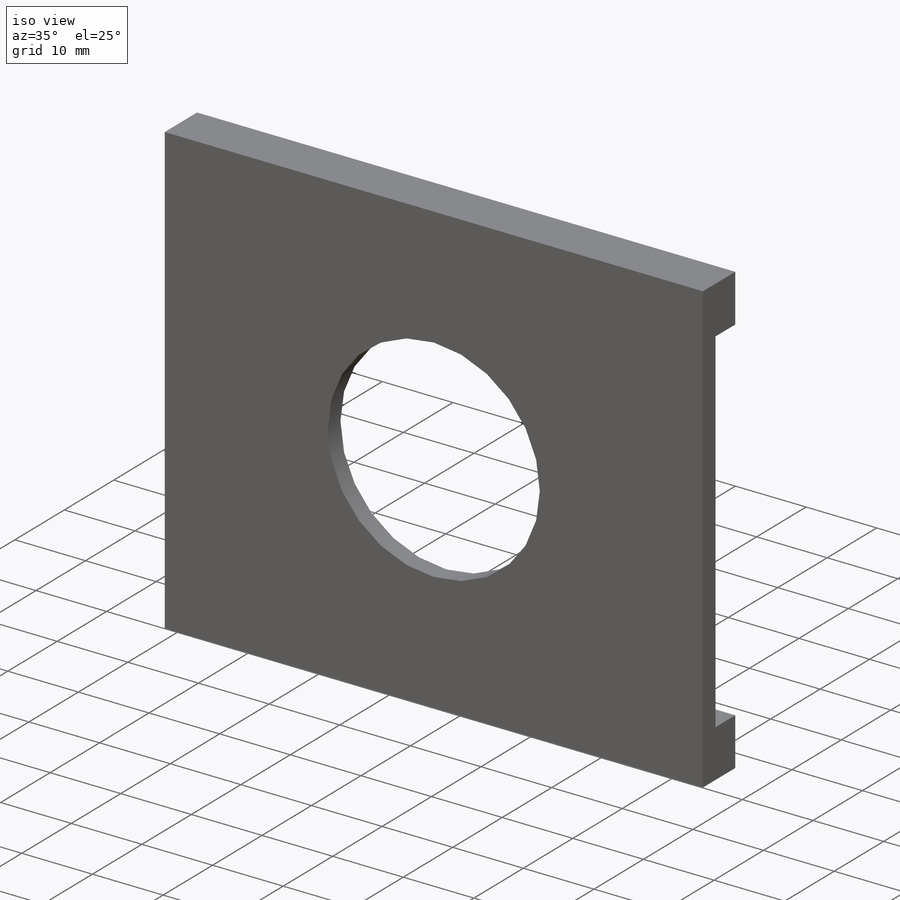
[diagram: iso view]
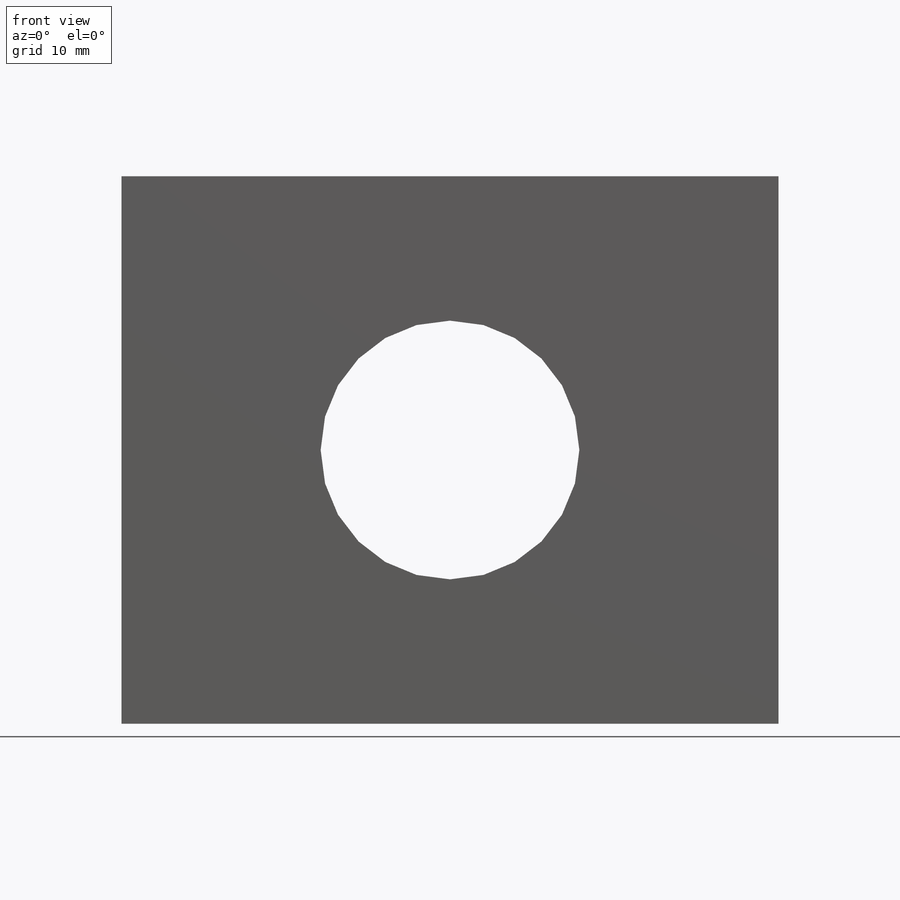
[diagram: front view]
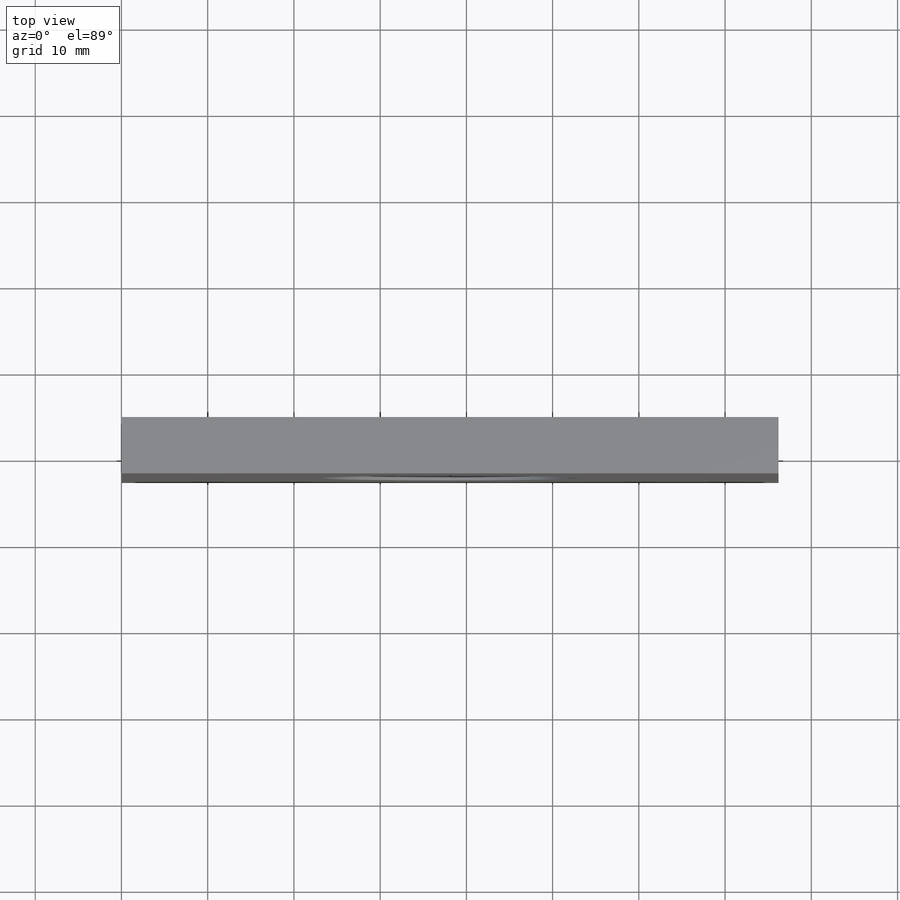
[diagram: top view]
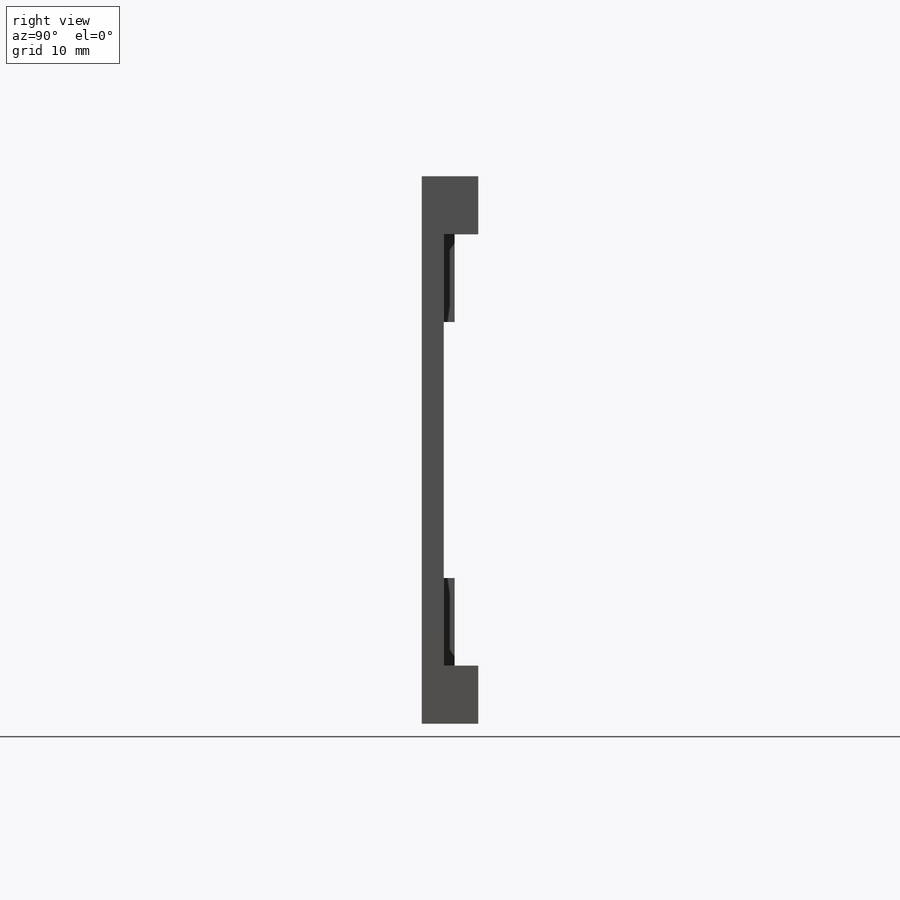
[diagram: right view]
SOLIDWORKS PART (.sldprt)
format: sldprt  version: not decoded by parser v0  size: 226,304 bytes
history: native  units: mm
features: sketch x5, extrude x3, plane x3, cut_extrude x2, material x1 (+13 scaffold rows collapsed)
feature tree (27):
  scaffold x13  (default folders/planes/origin — collapsed)
  material  "Material <not specified>"
  sketch  "Sketch1"
  extrude  "Boss-Extrude1"  Depth=2.54mm
  plane  "Plane1"  Offset=0mm
  sketch  "Sketch2"  dims[D1=6.75mm]
  extrude  "Boss-Extrude2"  Depth=4mm
  plane  "Plane2"  Offset=0mm
  sketch  "Sketch3"  dims[D1=12.7mm]
  cut_extrude  "Cut-Extrude1"  Depth=3.81mm
  plane  "Plane3"  Offset=0mm
  sketch  "Sketch4"  dims[D1=~16.577863mm]
  cut_extrude  "Cut-Extrude2"  Depth=10mm
  sketch  "Sketch5"  dims[D1=24.13mm D2=3.81mm D3=10.16mm D4=10.16mm]
  extrude  "Boss-Extrude3"  Depth=1.27mm
decode coverage: 9 of 10 modeling features carry decoded parameters
note: ~ marks probable driven/reference dimensions
note: suppression state not decoded; provenance and decode notes live in map.json
